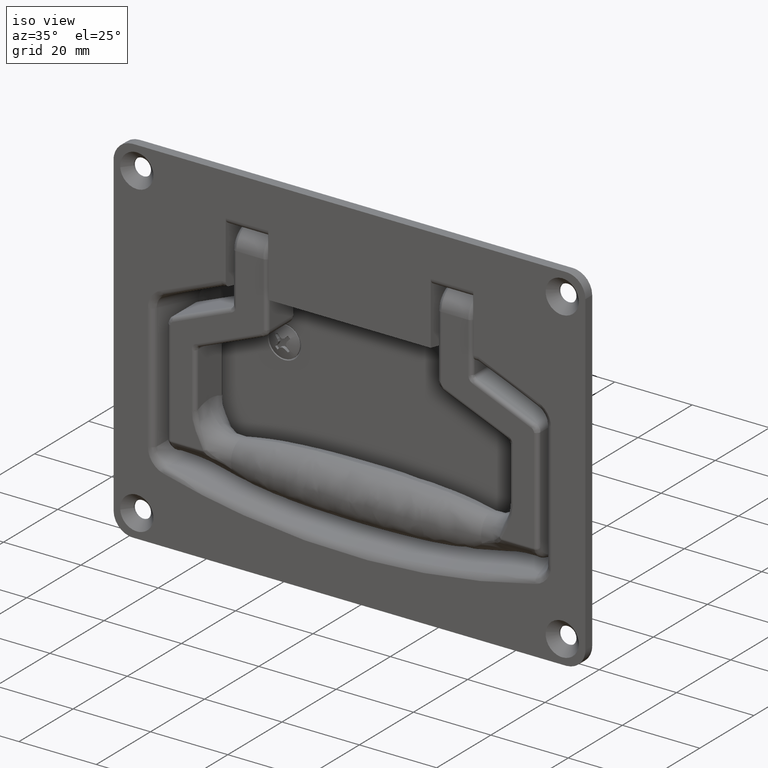
[diagram: clean part render]
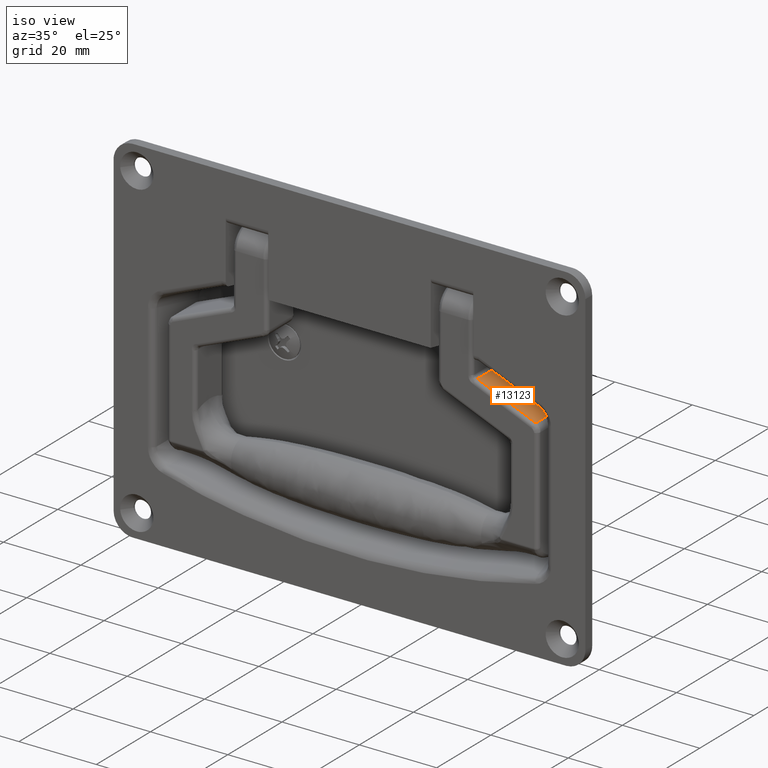
[diagram: same view with one face highlighted and labeled with its STEP entity id]
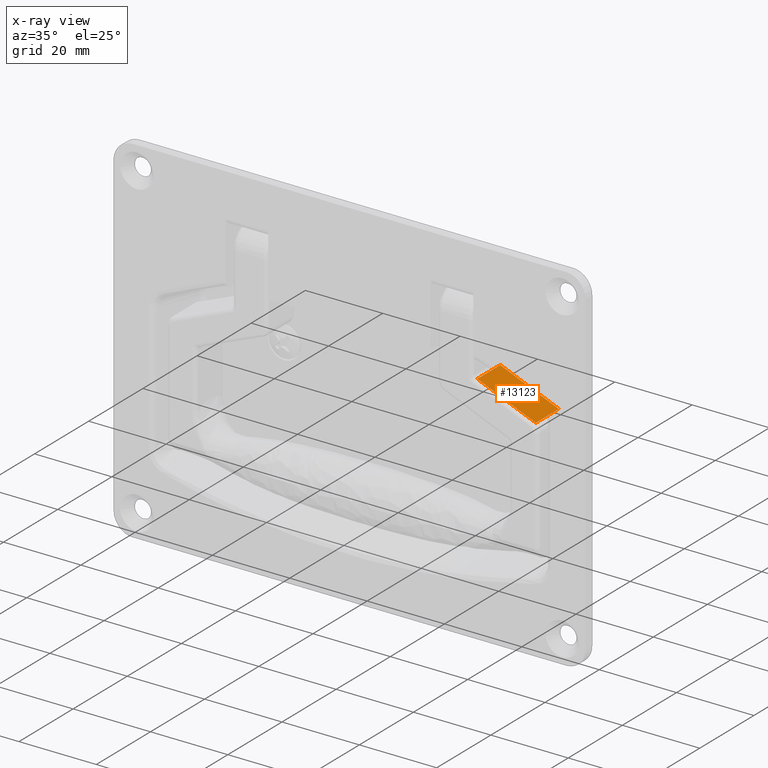
[diagram: x-ray of the same camera — body ghosted, the highlighted face saturated]
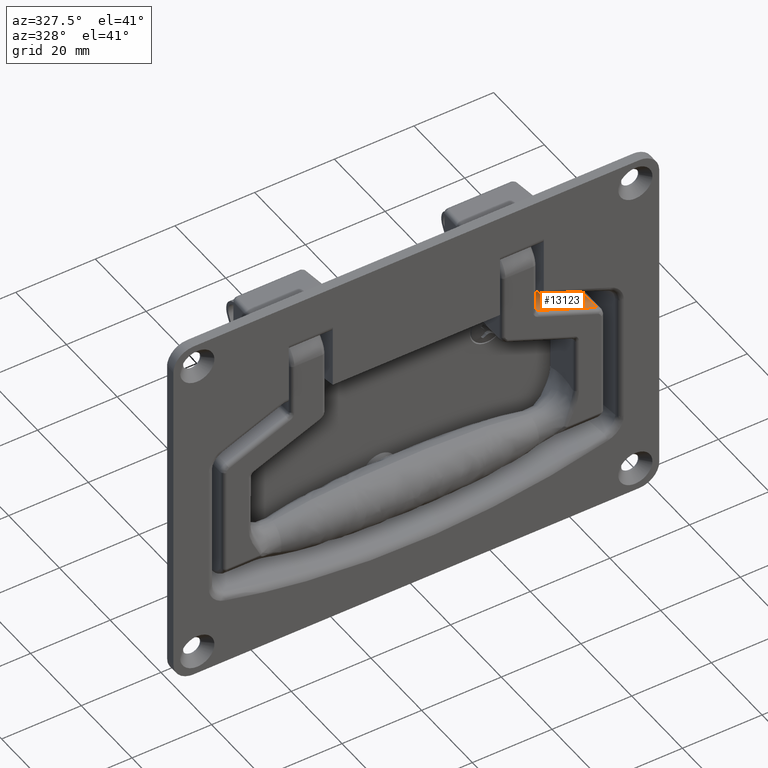
[diagram: same view with one face highlighted and labeled with its STEP entity id]
A machine part, iso view. The second image highlights one B-rep face of the part: STEP entity #13123.
The next image is the same camera in x-ray: the body ghosted, the highlighted face saturated — about 0% of this face is hidden behind the body in this view.
A second angle (auxiliary view) of the same face is appended — the face is thin or edge-on in the first view.
In plain terms, the highlighted face is a freeform B-spline surface patch.
Its self-contained STEP definition (entity closure, byte-faithful):
#6672=CARTESIAN_POINT('',(4.000000000000116,-46.761516196096302,-19.989900781553398));
#6673=VERTEX_POINT('',#6672);
#6778=CARTESIAN_POINT('',(4.000000000000116,-31.619241901951099,-13.754687834028299));
#6779=VERTEX_POINT('',#6778);
#6793=CARTESIAN_POINT('',(4.000000000000116,-46.761516196096302,-19.989900781553398));
#6794=CARTESIAN_POINT('',(4.000000000000116,-31.619241901951099,-13.754687834028299));
#6795=QUASI_UNIFORM_CURVE('',1,(#6793,#6794),.UNSPECIFIED.,.F.,.U.);
#6796=EDGE_CURVE('',#6673,#6779,#6795,.T.);
#7236=CARTESIAN_POINT('',(-4.500000000000000,-31.619241901951099,-13.754687834028299));
#7237=VERTEX_POINT('',#7236);
#7297=CARTESIAN_POINT('',(-4.500000000000060,-46.761516196096203,-19.989900781553398));
#7298=VERTEX_POINT('',#7297);
#7312=CARTESIAN_POINT('',(-4.500000000000000,-31.619241901951099,-13.754687834028299));
#7313=CARTESIAN_POINT('',(-4.500000000000060,-46.761516196096203,-19.989900781553398));
#7314=QUASI_UNIFORM_CURVE('',1,(#7312,#7313),.UNSPECIFIED.,.F.,.U.);
#7315=EDGE_CURVE('',#7237,#7298,#7314,.T.);
#11077=CARTESIAN_POINT('',(4.000000000000116,-31.619241901951099,-13.754687834028299));
#11078=CARTESIAN_POINT('',(-4.500000000000000,-31.619241901951099,-13.754687834028299));
#11079=QUASI_UNIFORM_CURVE('',1,(#11077,#11078),.UNSPECIFIED.,.F.,.U.);
#11080=EDGE_CURVE('',#6779,#7237,#11079,.T.);
#11478=CARTESIAN_POINT('',(-4.500000000000060,-46.761516196096203,-19.989900781553398));
#11479=CARTESIAN_POINT('',(4.000000000000116,-46.761516196096302,-19.989900781553398));
#11480=QUASI_UNIFORM_CURVE('',1,(#11478,#11479),.UNSPECIFIED.,.F.,.U.);
#11481=EDGE_CURVE('',#7298,#6673,#11480,.T.);
#13112=CARTESIAN_POINT('',(-4.924574983525419,-30.862885330307229,-13.443238959384420));
#13113=CARTESIAN_POINT('',(-4.924574983525419,-47.517873173887637,-20.301349823438649));
#13114=CARTESIAN_POINT('',(4.424575211513240,-30.862885330307229,-13.443238959384420));
#13115=CARTESIAN_POINT('',(4.424575211513240,-47.517873173887637,-20.301349823438649));
#13116=B_SPLINE_SURFACE_WITH_KNOTS('',1,1,((#13112,#13114),(#13113,#13115)),.UNSPECIFIED.,.F.,.F.,.U.,(2,2),(2,2),(0.0,18.011726865946802),(0.0,9.349150195038659),.UNSPECIFIED.);
#13117=ORIENTED_EDGE('',*,*,#11481,.T.);
#13118=ORIENTED_EDGE('',*,*,#6796,.T.);
#13119=ORIENTED_EDGE('',*,*,#11080,.T.);
#13120=ORIENTED_EDGE('',*,*,#7315,.T.);
#13121=EDGE_LOOP('',(#13117,#13118,#13119,#13120));
#13122=FACE_OUTER_BOUND('',#13121,.T.);
#13123=ADVANCED_FACE('',(#13122),#13116,.T.);